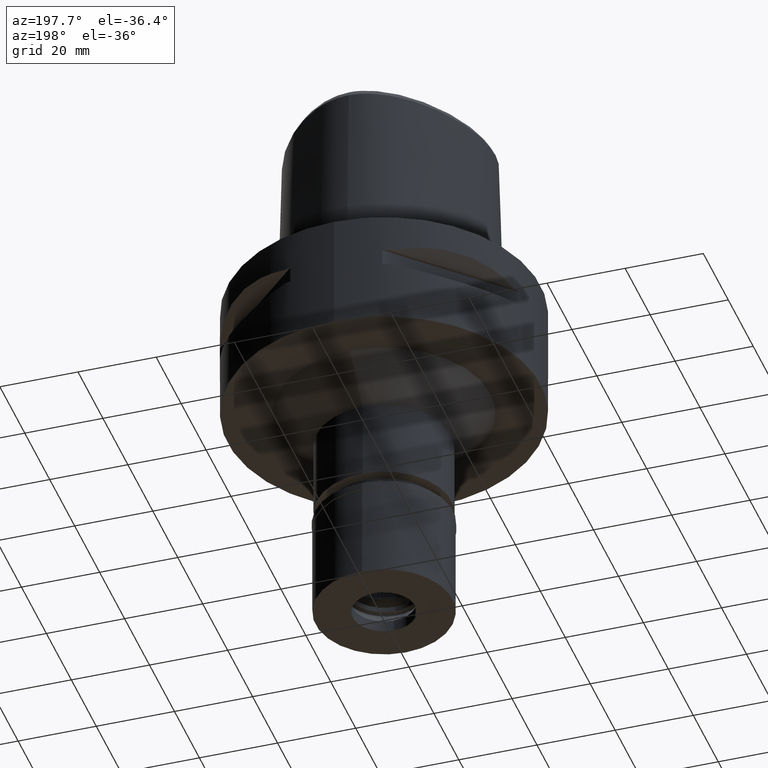
[diagram: clean part render]
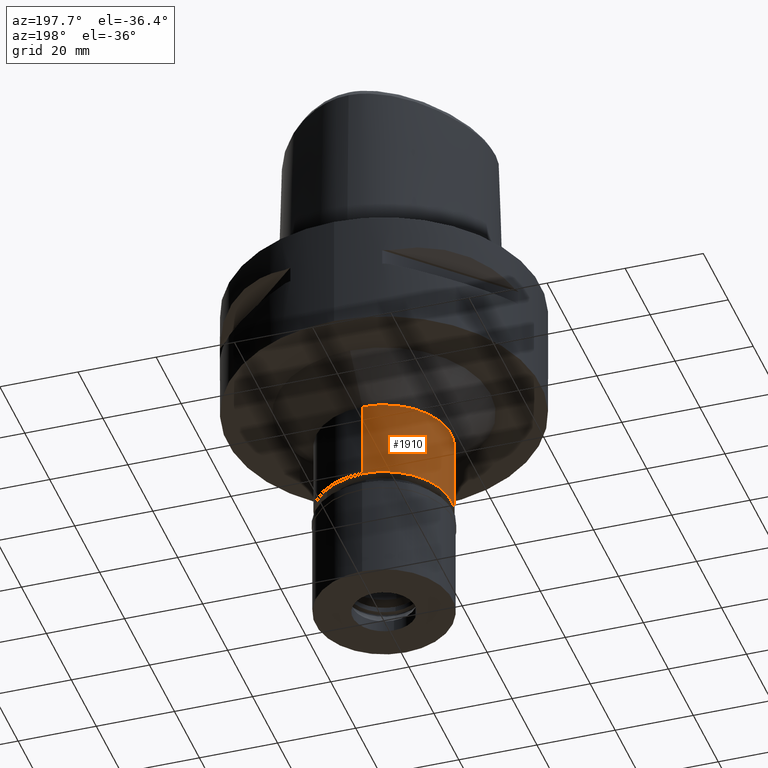
[diagram: same view with one face highlighted and labeled with its STEP entity id]
A machine part, auxiliary view. The second image highlights one B-rep face of the part: STEP entity #1910.
In plain terms, the highlighted cylindrical surface (partial cylindrical patch) has radius 17.25 mm, axis along (0, 0, -1).
Its self-contained STEP definition (entity closure, byte-faithful):
#22 = CARTESIAN_POINT ( 'NONE',  ( 0.0000000000000000000, 0.0000000000000000000, -40.00000000000000000 ) ) ;
#42 = DIRECTION ( 'NONE',  ( 0.0000000000000000000, 0.0000000000000000000, -1.000000000000000000 ) ) ;
#146 = ORIENTED_EDGE ( 'NONE', *, *, #906, .T. ) ;
#360 = CARTESIAN_POINT ( 'NONE',  ( 0.0000000000000000000, -17.25000000000000000, -60.19999999999999574 ) ) ;
#409 = EDGE_CURVE ( 'NONE', #1086, #4450, #2661, .T. ) ;
#541 = ORIENTED_EDGE ( 'NONE', *, *, #409, .T. ) ;
#542 = DIRECTION ( 'NONE',  ( 0.0000000000000000000, 0.0000000000000000000, -1.000000000000000000 ) ) ;
#728 = DIRECTION ( 'NONE',  ( 0.0000000000000000000, 0.0000000000000000000, -1.000000000000000000 ) ) ;
#735 = CYLINDRICAL_SURFACE ( 'NONE', #2101, 17.25000000000000000 ) ;
#906 = EDGE_CURVE ( 'NONE', #1052, #1963, #3798, .T. ) ;
#1052 = VERTEX_POINT ( 'NONE', #1680 ) ;
#1055 = DIRECTION ( 'NONE',  ( 0.0000000000000000000, 0.0000000000000000000, 1.000000000000000000 ) ) ;
#1086 = VERTEX_POINT ( 'NONE', #3213 ) ;
#1198 = VECTOR ( 'NONE', #542, 1000.000000000000000 ) ;
#1260 = CARTESIAN_POINT ( 'NONE',  ( 0.0000000000000000000, 17.25000000000000000, -40.00000000000000000 ) ) ;
#1432 = EDGE_CURVE ( 'NONE', #1052, #4450, #2503, .T. ) ;
#1533 = DIRECTION ( 'NONE',  ( 0.0000000000000000000, 0.0000000000000000000, -1.000000000000000000 ) ) ;
#1594 = AXIS2_PLACEMENT_3D ( 'NONE', #22, #728, #5005 ) ;
#1680 = CARTESIAN_POINT ( 'NONE',  ( 0.0000000000000000000, -17.25000000000000000, -40.00000000000000000 ) ) ;
#1884 = EDGE_LOOP ( 'NONE', ( #541, #2837, #146, #3373 ) ) ;
#1910 = ADVANCED_FACE ( 'NONE', ( #4226 ), #735, .T. ) ;
#1963 = VERTEX_POINT ( 'NONE', #2493 ) ;
#2101 = AXIS2_PLACEMENT_3D ( 'NONE', #2313, #1533, #3093 ) ;
#2143 = VECTOR ( 'NONE', #42, 1000.000000000000000 ) ;
#2313 = CARTESIAN_POINT ( 'NONE',  ( 0.0000000000000000000, 1.273020347714000000E-14, 3.950000000000000178 ) ) ;
#2493 = CARTESIAN_POINT ( 'NONE',  ( 0.0000000000000000000, 17.25000000000000000, -40.00000000000000000 ) ) ;
#2503 = LINE ( 'NONE', #3229, #1198 ) ;
#2661 = CIRCLE ( 'NONE', #2828, 17.25000000000000000 ) ;
#2828 = AXIS2_PLACEMENT_3D ( 'NONE', #3760, #1055, #4155 ) ;
#2837 = ORIENTED_EDGE ( 'NONE', *, *, #1432, .F. ) ;
#3093 = DIRECTION ( 'NONE',  ( 0.0000000000000000000, -1.000000000000000000, 0.0000000000000000000 ) ) ;
#3213 = CARTESIAN_POINT ( 'NONE',  ( 0.0000000000000000000, 17.25000000000000000, -60.19999999999999574 ) ) ;
#3229 = CARTESIAN_POINT ( 'NONE',  ( 0.0000000000000000000, -17.25000000000000000, -40.00000000000000000 ) ) ;
#3373 = ORIENTED_EDGE ( 'NONE', *, *, #3421, .T. ) ;
#3421 = EDGE_CURVE ( 'NONE', #1963, #1086, #3943, .T. ) ;
#3760 = CARTESIAN_POINT ( 'NONE',  ( 0.0000000000000000000, 1.273020347714000000E-14, -60.19999999999999574 ) ) ;
#3798 = CIRCLE ( 'NONE', #1594, 17.25000000000000000 ) ;
#3943 = LINE ( 'NONE', #1260, #2143 ) ;
#4155 = DIRECTION ( 'NONE',  ( 0.0000000000000000000, 1.000000000000000000, 0.0000000000000000000 ) ) ;
#4226 = FACE_OUTER_BOUND ( 'NONE', #1884, .T. ) ;
#4450 = VERTEX_POINT ( 'NONE', #360 ) ;
#5005 = DIRECTION ( 'NONE',  ( 0.0000000000000000000, -1.000000000000000000, 0.0000000000000000000 ) ) ;